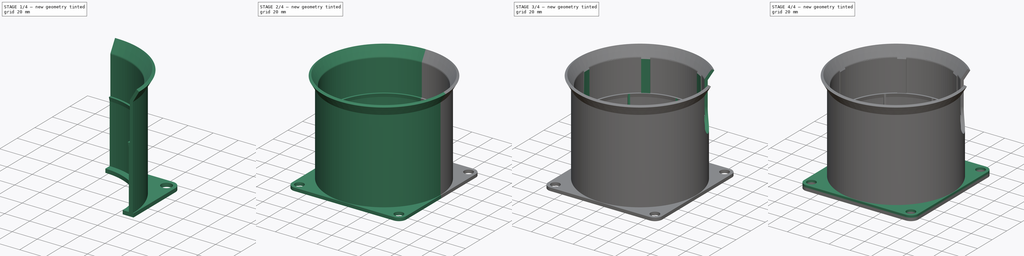
[diagram: build sequence overview — one tinted view per stage of 4, left to right]
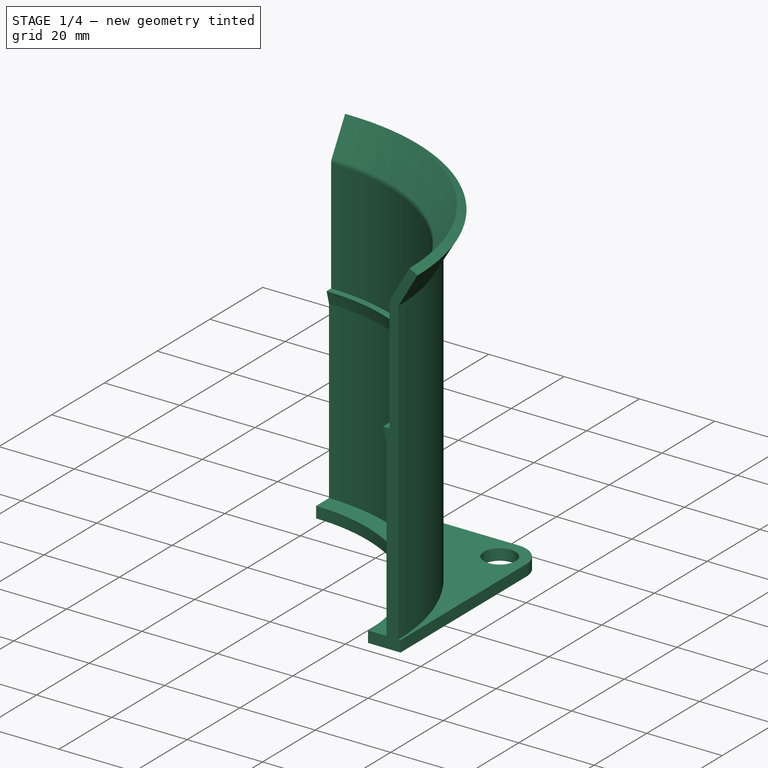
[diagram: stage 1 of 4 — iso view after this stage's code; geometry added in this stage tinted green]
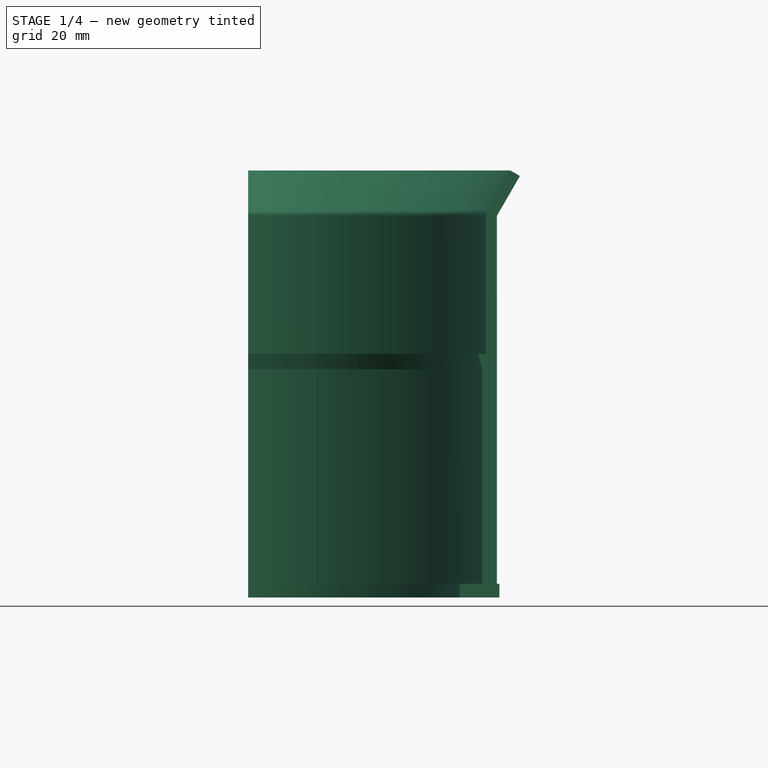
[diagram: stage 1 of 4 — front view after this stage's code; geometry added in this stage tinted green]
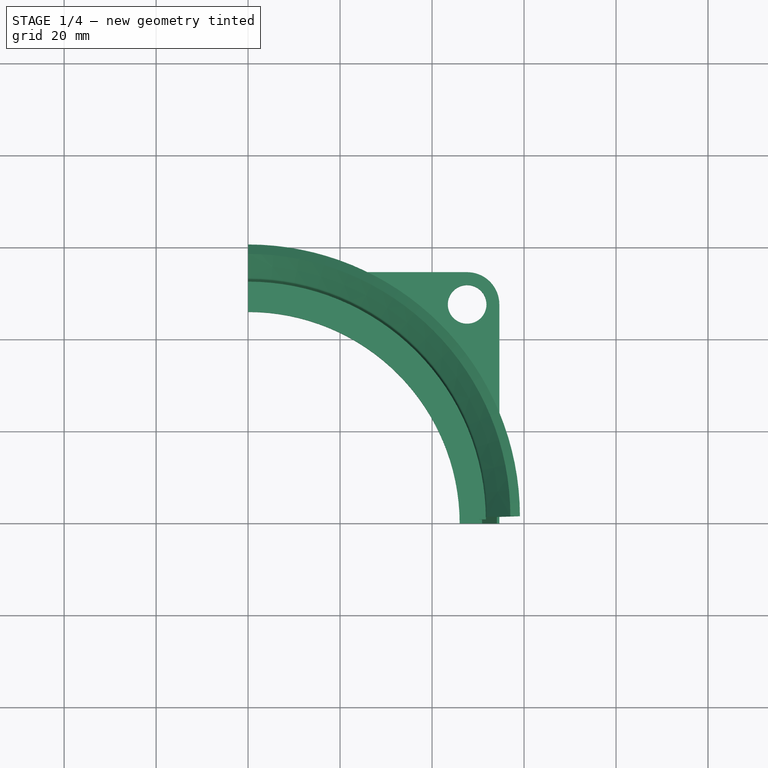
[diagram: stage 1 of 4 — top view after this stage's code; geometry added in this stage tinted green]
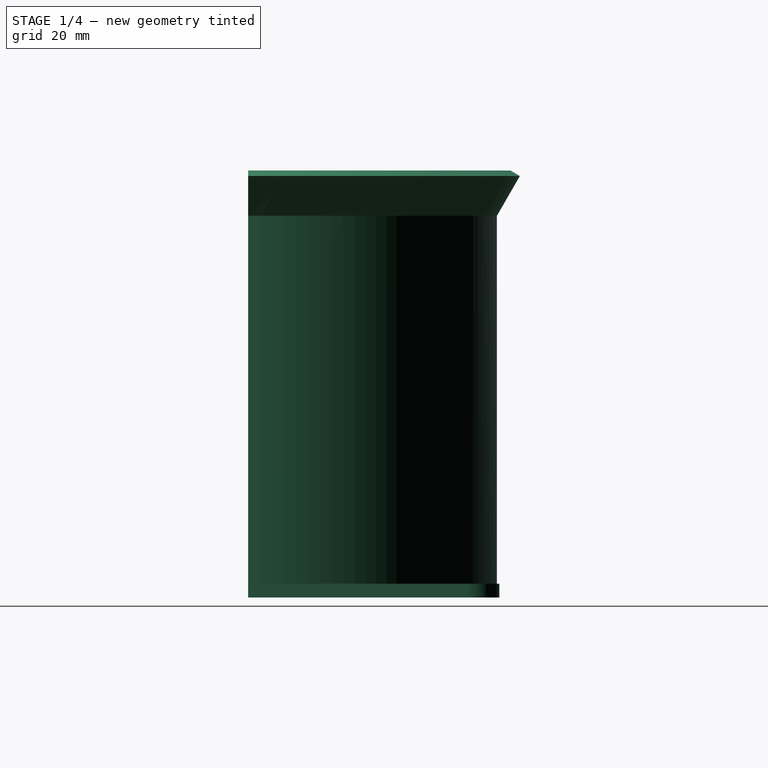
[diagram: stage 1 of 4 — right view after this stage's code; geometry added in this stage tinted green]
FCSTD DOCUMENT  (FreeCAD 0.20R29177 (Git))
Label: Фланец колец 2
License: All rights reserved
LicenseURL: http://en.wikipedia.org/wiki/All_rights_reserved
objects: Sketcher::SketchObject×6, PartDesign::Mirrored×6, PartDesign::MultiTransform×4, PartDesign::Revolution×3, PartDesign::Pad×2, PartDesign::PolarPattern×2, PartDesign::Body×2, Spreadsheet::Sheet×1, PartDesign::Plane×1, PartDesign::Pocket×1
note: 33 computed .brp shape members not serialized (recipe doc carries the construction recipe); baked Part::Feature solids carry a one-line shape summary decoded from their .brp

FEATURE [Sketcher::SketchObject] Sketch
  FullyConstrained = true
  MapMode = 5
  Placement = pos=(0,0,0) rot=(1,0,0;1.5708rad)
  Support = -> [XZ_Plane]
  expr: Constraints[19] = Spreadsheet.wallThickness
  expr: Constraints[24] = Spreadsheet.tube_height
  expr: Constraints[4] = Spreadsheet.final_tubeOutsideD / 2
  expr: Constraints[5] = Spreadsheet.tube_inner_radius / 2
  sketch-geometry (11):
    g0: LineSegment StartX=50 StartY=50 StartZ=0 EndX=51.7 EndY=50 EndZ=0
    g1: LineSegment StartX=50 StartY=50 StartZ=0 EndX=50.9 EndY=46.6412 EndZ=0
    g2: LineSegment StartX=51.7 StartY=50 StartZ=0 EndX=51.7 EndY=80 EndZ=0
    g3: ArcOfCircle CenterX=54.1 CenterY=80 CenterZ=0 NormalX=0 NormalY=0 NormalZ=1 AngleXU=0 Radius=2.4 StartAngle=2.61799 EndAngle=3.14159
    g4: LineSegment StartX=52.0215 StartY=81.2 StartZ=0 EndX=57.0215 EndY=89.8603 EndZ=0
    g5: LineSegment StartX=57.0215 StartY=89.8603 StartZ=0 EndX=59.1 EndY=88.6603 EndZ=0
    g6: LineSegment StartX=59.1 StartY=88.6603 StartZ=0 EndX=54.1 EndY=80 EndZ=0
    g7: LineSegment StartX=54.1 StartY=80 StartZ=0 EndX=54.1 EndY=50 EndZ=0
    g8: LineSegment StartX=50.9 StartY=0 StartZ=0 EndX=54.1 EndY=0 EndZ=0
    g9: LineSegment StartX=54.1 StartY=0 StartZ=0 EndX=54.1 EndY=50 EndZ=0
    g10: LineSegment StartX=50.9 StartY=46.6412 StartZ=0 EndX=50.9 EndY=0 EndZ=0
  constraints (35):
    c: Horizontal(g0)
    c: Coincident(g1,g0)
    c: Coincident(g2,g0)
    c: Vertical(g2)
    c: Distance(g0,g-2) = 51.7
    c: Distance(g0,g-2) = 50
    c: Coincident(g3,g2)
    c: Coincident(g4,g3)
    c: Coincident(g5,g4)
    c: Coincident(g6,g5)
    c: Coincident(g6,g3)
    c: Coincident(g7,g3)
    c: Vertical(g7)
    c: Tangent(g4,g3)
    c: Tangent(g3,g2)
    c: Angle(g7,g6) = 2.61799
    c: Perpendicular(g6,g5)
    c: Parallel(g6,g4)
    c: Distance(g6) = 10
    c: Distance(g5) = 2.4
    c: Angle(g1,g0) = 1.309
    c: Horizontal(g8)
    c: Coincident(g9,g8)
    c: PointOnObject(g8,g-1)
    c: Distance(g7) = 30
    c: Distance(g0,g-1) = 50
    c: Coincident(g9,g7)
    c: Vertical(g9)
    c: Distance(g2) = 30
    c: Distance(g0,g7) = 4.1
    c: Distance(g1,g9) = 3.2
    c: Coincident(g10,g1)
    c: Coincident(g10,g8)
    c: Vertical(g10)
    c: Angle(g1,g0) = 1.309
FEATURE [Spreadsheet::Sheet] Spreadsheet
  cells = A1=Труба; B1(tube_outer_radius)=102; C1(tube_inner_radius)=100; D1(tube_height)=30; B2=Внешний диаметр; C2=Внутренний диаметр; D2=Высота; A3=Выступы; B3(ledge_width)=4; C3(ledge_length)=0.7; B4=Ширина; C4=Длина; B5(final_tubeOutsideD)==tube_outer_radius + ledge_length * 2; A15=Общее; B15(wallThickness)=2.4; B16=Толщина стенки
FEATURE [PartDesign::Revolution] Revolution
  Angle = 90
  Axis = (0,-2e-16,1)
  Base = (0,0,0)
  Placement = pos=(0,0,0) rot=(1,0,0;1.5708rad)
  Profile = -> Sketch
  ReferenceAxis = -> Sketch [V_Axis]
FEATURE [Sketcher::SketchObject] Sketch001
  FullyConstrained = true
  MapMode = 5
  Support = -> [XY_Plane]
  sketch-geometry (14):
    g0: Circle CenterX=47.625 CenterY=47.625 CenterZ=0 NormalX=0 NormalY=0 NormalZ=1 AngleXU=0 Radius=4.2
    g1: ArcOfCircle CenterX=47.625 CenterY=47.625 CenterZ=0 NormalX=0 NormalY=0 NormalZ=1 AngleXU=0 Radius=7 StartAngle=6.28318 EndAngle=7.85398
    g2: LineSegment StartX=54.625 StartY=47.625 StartZ=0 EndX=54.625 EndY=0 EndZ=0
    g3: LineSegment StartX=47.625 StartY=54.625 StartZ=0 EndX=0 EndY=54.625 EndZ=0
    g4: LineSegment StartX=54.625 StartY=0 StartZ=0 EndX=46 EndY=0 EndZ=0
    g5: ArcOfCircle CenterX=0 CenterY=0 CenterZ=0 NormalX=0 NormalY=0 NormalZ=1 AngleXU=0 Radius=46 StartAngle=0 EndAngle=0.399817
    g6: LineSegment StartX=0 StartY=54.625 StartZ=0 EndX=0 EndY=46 EndZ=0
    g7: ArcOfCircle CenterX=0 CenterY=0 CenterZ=0 NormalX=0 NormalY=0 NormalZ=1 AngleXU=0 Radius=44.5 StartAngle=0.399817 EndAngle=0.534751
    g8: LineSegment StartX=38.2876 StartY=22.6784 StartZ=0 EndX=39.5782 EndY=23.4428 EndZ=0
    g9: LineSegment StartX=40.9904 StartY=17.3216 StartZ=0 EndX=42.3721 EndY=17.9055 EndZ=0
    g10: LineSegment StartX=40.9904 StartY=17.3216 StartZ=0 EndX=39.639 EndY=20 EndZ=0
    g11: LineSegment StartX=39.639 StartY=20 StartZ=0 EndX=38.2876 EndY=22.6784 EndZ=0
    g12: ArcOfCircle CenterX=0 CenterY=0 CenterZ=0 NormalX=0 NormalY=0 NormalZ=1 AngleXU=0 Radius=46 StartAngle=0.534751 EndAngle=1.5708
    g13: ArcOfCircle CenterX=0 CenterY=0 CenterZ=0 NormalX=0 NormalY=0 NormalZ=1 AngleXU=0 Radius=46 StartAngle=0.399817 EndAngle=0.534751
  constraints (40):
    c: DistanceX(g0) = 47.625
    c: DistanceY(g0) = 47.625
    c: Diameter(g0) = 8.4
    c: Coincident(g1,g0)
    c: Diameter(g1) = 14
    c: Coincident(g2,g1)
    c: PointOnObject(g2,g-1)
    c: Vertical(g2)
    c: Coincident(g3,g1)
    c: PointOnObject(g3,g-2)
    c: Horizontal(g3)
    c: Tangent(g1,g3)
    c: Tangent(g1,g2)
    c: Coincident(g4,g2)
    c: PointOnObject(g4,g-1)
    c: Coincident(g5,g-1)
    c: Coincident(g5,g4)
    c: PointOnObject(g12,g-2)
    c: Diameter(g5) = 92
    c: Coincident(g6,g3)
    c: Coincident(g6,g12)
    c: Coincident(g8,g7)
    c: Coincident(g9,g7)
    c: Perpendicular(g7,g9)
    c: Perpendicular(g7,g8)
    c: Coincident(g10,g7)
    c: Coincident(g11,g10)
    c: Coincident(g11,g7)
    c: Parallel(g10,g11)
    c: Equal(g10,g11)
    c: Distance(g10,g-1) = 20
    c: Distance(g7,g7) = 6
    c: Distance(g9) = 1.5
    c: Coincident(g7,g5)
    c: Coincident(g5,g9)
    c: Coincident(g12,g8)
    c: Coincident(g5,g12)
    c: Coincident(g13,g5)
    c: Coincident(g13,g5)
    c: Coincident(g13,g12)
FEATURE [PartDesign::Pad] Pad
  BaseFeature = -> Revolution
  Direction = (1,1,1)
  Length = 3
  Length2 = 100
  Placement = pos=(0,0,0) rot=(1,0,0;1.5708rad)
  Profile = -> Sketch001
  Reversed = true
  Type = 0
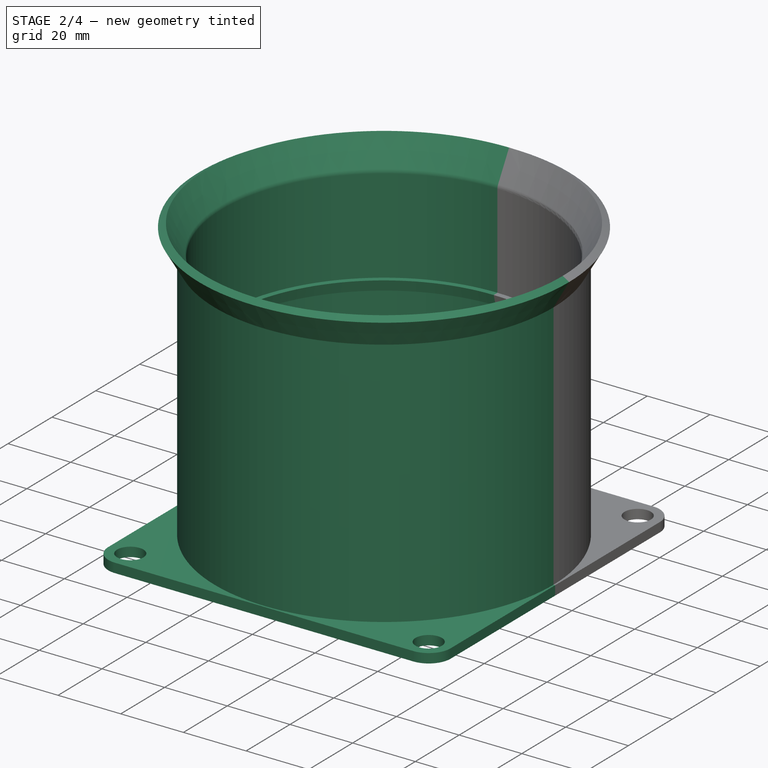
[diagram: stage 2 of 4 — iso view after this stage's code; geometry added in this stage tinted green]
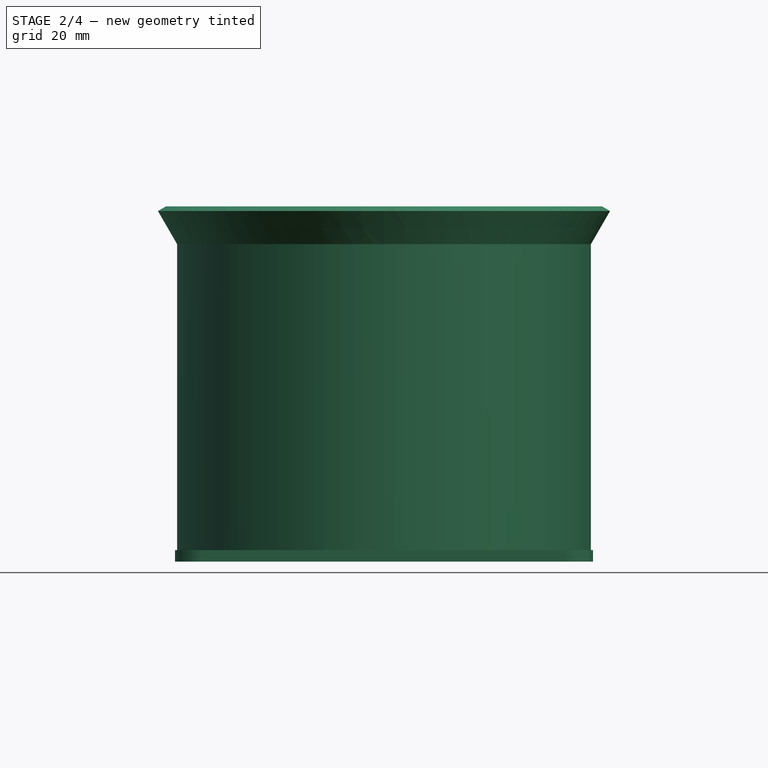
[diagram: stage 2 of 4 — front view after this stage's code; geometry added in this stage tinted green]
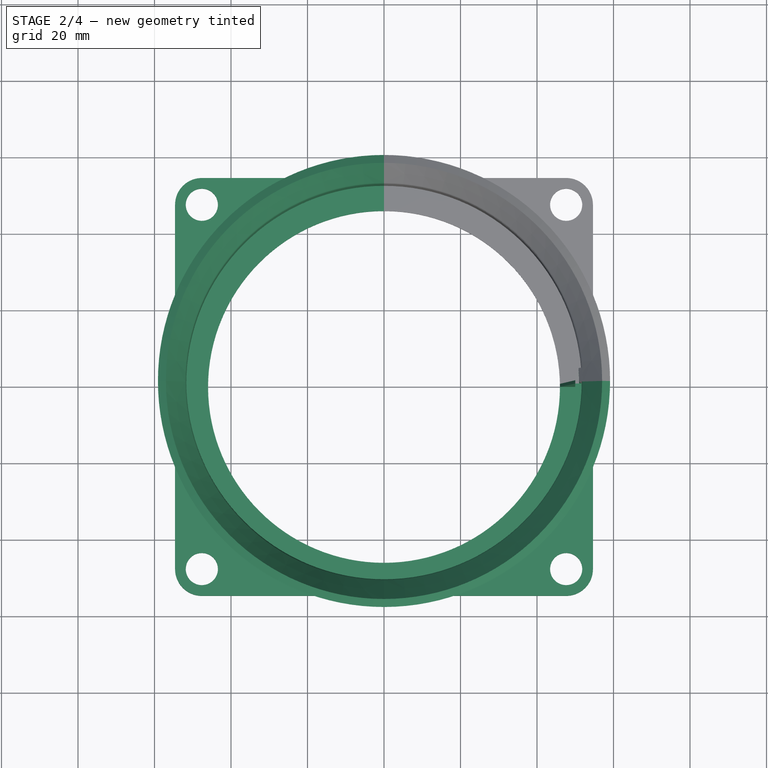
[diagram: stage 2 of 4 — top view after this stage's code; geometry added in this stage tinted green]
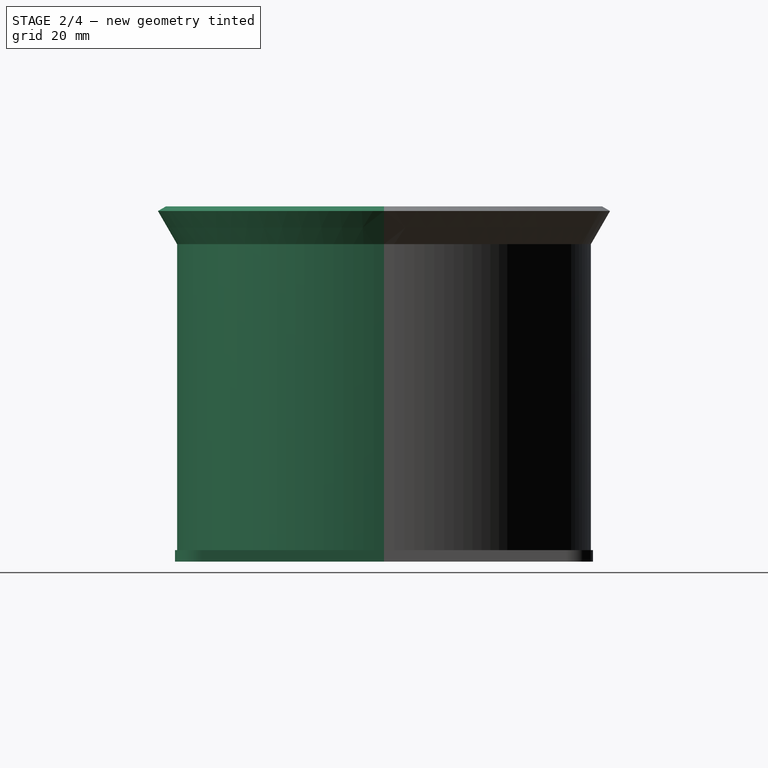
[diagram: stage 2 of 4 — right view after this stage's code; geometry added in this stage tinted green]
FEATURE [Sketcher::SketchObject] Sketch002
  FullyConstrained = true
  MapMode = 5
  Placement = pos=(0,0,0) rot=(1,0,0;1.5708rad)
  Support = -> [XZ_Plane]
  sketch-geometry (5):
    g0: LineSegment StartX=51 StartY=50 StartZ=0 EndX=51.7 EndY=50 EndZ=0
    g1: LineSegment StartX=51.7 StartY=50 StartZ=0 EndX=51.7 EndY=80 EndZ=0
    g2: LineSegment StartX=51 StartY=79.43 StartZ=0 EndX=51 EndY=50 EndZ=0
    g3: LineSegment StartX=51 StartY=79.43 StartZ=0 EndX=52.02 EndY=81.1967 EndZ=0
    g4: LineSegment StartX=51.7 StartY=80 StartZ=0 EndX=52.02 EndY=81.1967 EndZ=0
  constraints (15):
    c: Coincident(g0,g1)
    c: Coincident(g2,g0)
    c: Horizontal(g0)
    c: Vertical(g1)
    c: Vertical(g2)
    c: Coincident(g3,g2)
    c: Coincident(g4,g1)
    c: Coincident(g4,g3)
    c: Distance(g0,g-1) = 50
    c: Distance(g0) = 0.7
    c: Angle(g2,g3) = 2.61799
    c: Distance(g2) = 29.43
    c: Distance(g1) = 30
    c: Distance(g0,g-2) = 51.7
    c: Distance(g3) = 2.04
FEATURE [PartDesign::Revolution] Revolution001
  Angle = 4
  Axis = (0,-2e-16,1)
  Base = (0,0,0)
  BaseFeature = -> Pad
  Placement = pos=(0,0,0) rot=(1,0,0;1.5708rad)
  Profile = -> Sketch002
  ReferenceAxis = -> Sketch002 [V_Axis]
FEATURE [Sketcher::SketchObject] Sketch004
  FullyConstrained = false
  MapMode = 5
  Placement = pos=(0,0,0) rot=(1,0,0;1.5708rad)
  Support = -> [XZ_Plane]
  sketch-geometry (4):
    g0: LineSegment StartX=46 StartY=0 StartZ=0 EndX=50 EndY=50 EndZ=0
    g1: LineSegment StartX=50 StartY=50 StartZ=0 EndX=51 EndY=46.7994 EndZ=0
    g2: LineSegment StartX=51 StartY=46.7994 StartZ=0 EndX=51 EndY=0 EndZ=0
    g3: LineSegment StartX=51 StartY=0 StartZ=0 EndX=46 EndY=0 EndZ=0
  constraints (11):
    c: PointOnObject(g3,g-1)
    c: Coincident(g1,g0)
    c: Coincident(g2,g1)
    c: PointOnObject(g2,g-1)
    c: Vertical(g2)
    c: Coincident(g3,g2)
    c: DistanceX(g-1,g3) = 46
    c: Distance(g2,g-1) = 51
    c: DistanceX(g0) = 50
    c: DistanceY(g0) = 50
    c: Coincident(g0,g3)
FEATURE [PartDesign::Revolution] Revolution002
  Angle = 0.996448
  Axis = (-3e-16,3e-16,1)
  Base = (0,0,0)
  BaseFeature = -> Revolution001
  Placement = pos=(0,0,0) rot=(1,0,0;1.5708rad)
  Profile = -> Sketch004
  ReferenceAxis = -> Z_Axis
  expr: Angle = 1.6 / (pi * 92 / 360) / 2
FEATURE [PartDesign::Mirrored] Mirrored
  MirrorPlane = -> Sketch [V_Axis]
  Placement = pos=(0,0,0) rot=(1,0,0;1.5708rad)
FEATURE [PartDesign::Mirrored] Mirrored001
  MirrorPlane = -> XZ_Plane
  Placement = pos=(0,0,0) rot=(1,0,0;1.5708rad)
FEATURE [PartDesign::MultiTransform] MultiTransform
  BaseFeature = -> Revolution002
  Originals = -> [Revolution,Pad]
  Placement = pos=(0,0,0) rot=(1,0,0;1.5708rad)
  Transformations = -> [Mirrored,Mirrored001]
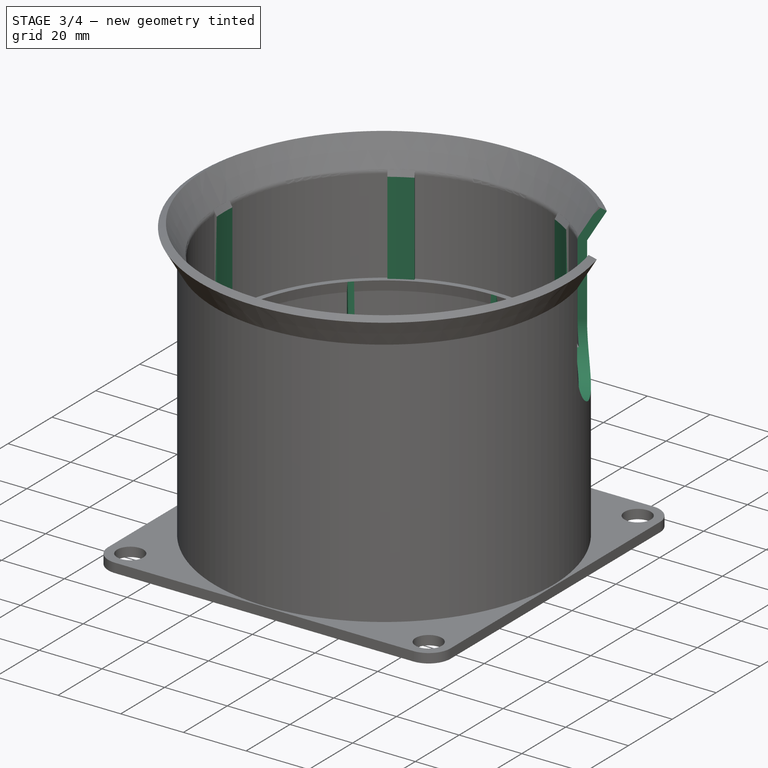
[diagram: stage 3 of 4 — iso view after this stage's code; geometry added in this stage tinted green]
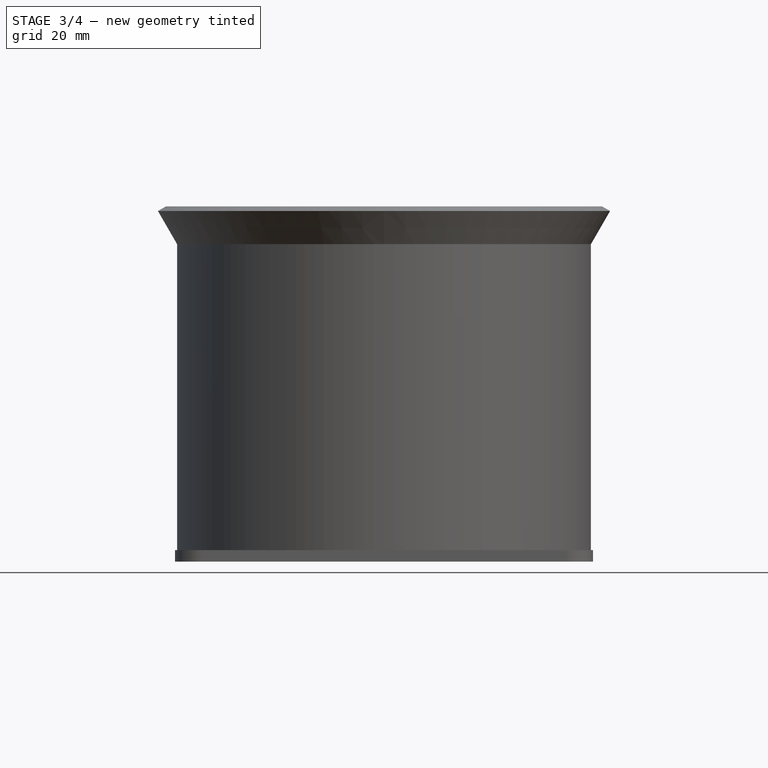
[diagram: stage 3 of 4 — front view after this stage's code; geometry added in this stage tinted green]
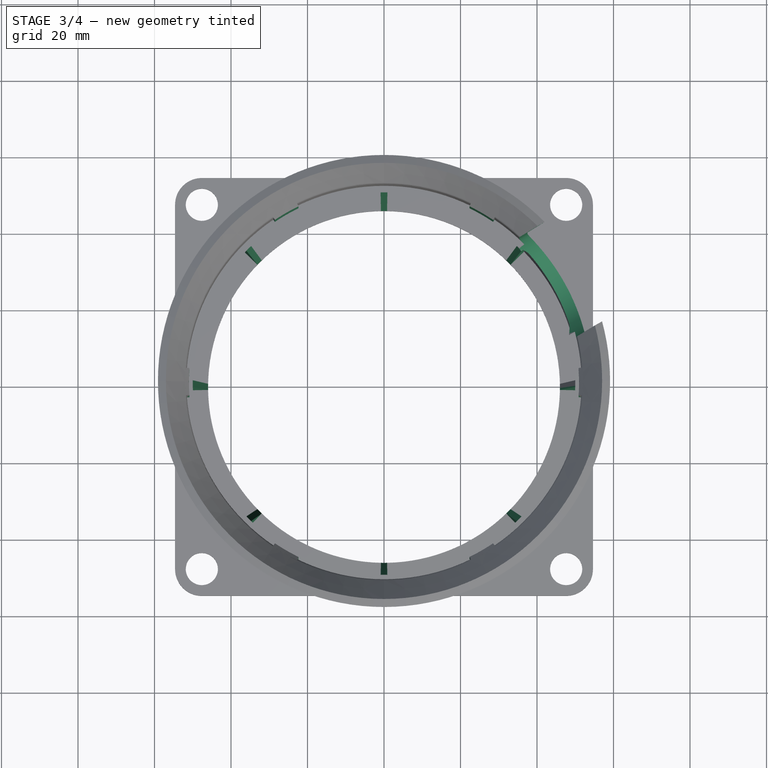
[diagram: stage 3 of 4 — top view after this stage's code; geometry added in this stage tinted green]
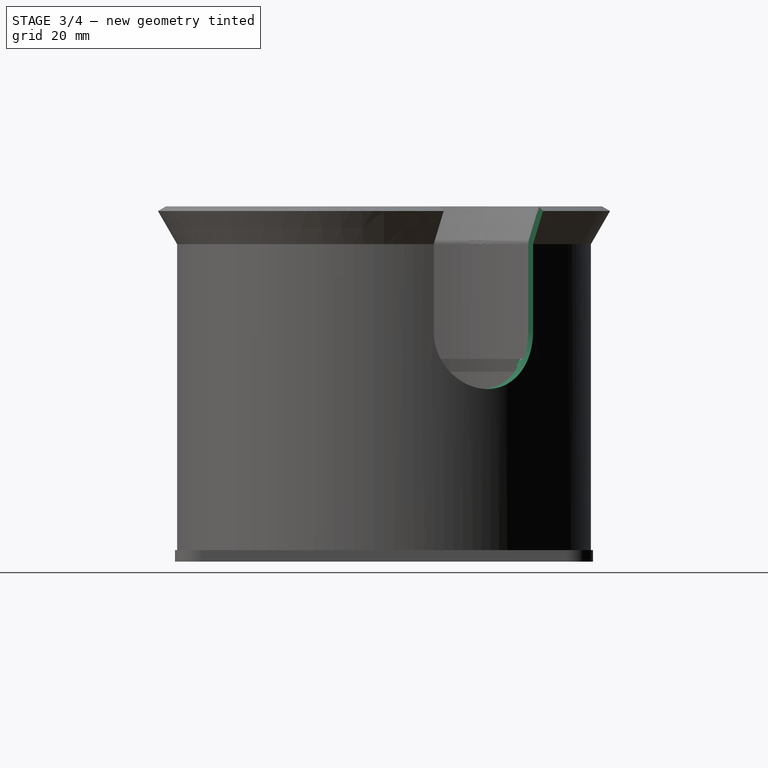
[diagram: stage 3 of 4 — right view after this stage's code; geometry added in this stage tinted green]
FEATURE [PartDesign::Mirrored] Mirrored002
  MirrorPlane = -> XZ_Plane
  Placement = pos=(0,0,0) rot=(1,0,0;1.5708rad)
FEATURE [PartDesign::PolarPattern] PolarPattern
  Angle = 360
  Axis = -> Sketch002 [V_Axis]
  Occurrences = 6
  Placement = pos=(0,0,0) rot=(1,0,0;1.5708rad)
FEATURE [PartDesign::MultiTransform] MultiTransform001
  BaseFeature = -> MultiTransform
  Originals = -> [Revolution001]
  Placement = pos=(0,0,0) rot=(1,0,0;1.5708rad)
  Transformations = -> [Mirrored002,PolarPattern]
FEATURE [PartDesign::Mirrored] Mirrored003
  MirrorPlane = -> XZ_Plane
  Placement = pos=(0,0,0) rot=(1,0,0;1.5708rad)
FEATURE [PartDesign::PolarPattern] PolarPattern001
  Angle = 360
  Axis = -> Sketch004 [V_Axis]
  Occurrences = 8
  Placement = pos=(0,0,0) rot=(1,0,0;1.5708rad)
FEATURE [PartDesign::MultiTransform] MultiTransform002
  BaseFeature = -> MultiTransform001
  Originals = -> [Revolution002]
  Placement = pos=(0,0,0) rot=(1,0,0;1.5708rad)
  Transformations = -> [Mirrored003,PolarPattern001]
FEATURE [PartDesign::Body] Body001
  Group = -> [Sketch006,Pad001,MultiTransform003,Mirrored004,Mirrored005]
  Origin = -> Origin001
  Tip = -> MultiTransform003
FEATURE [PartDesign::Pocket] Pocket
  BaseFeature = -> MultiTransform002
  Direction = (1,1,1)
  Length = 5
  Length2 = 100
  Placement = pos=(0,0,0) rot=(1,0,0;1.5708rad)
  Profile = -> Sketch005
  Type = 1
FEATURE [PartDesign::Body] Body
  Group = -> [Sketch,Revolution,Sketch001,Pad,Sketch002,Revolution001,Sketch004,Revolution002,MultiTransform,Mirrored,Mirrored001,MultiTransform001,Mirrored002,PolarPattern,MultiTransform002,Mirrored003,PolarPattern001,DatumPlane002,Sketch005,Pocket]
  Origin = -> Origin
  Tip = -> Pocket
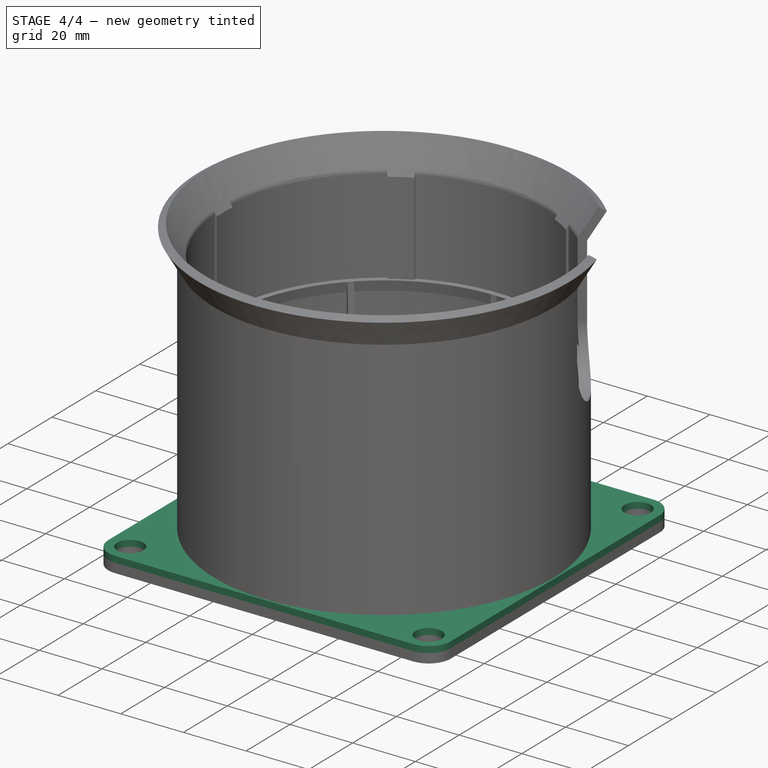
[diagram: stage 4 of 4 — iso view after this stage's code; geometry added in this stage tinted green]
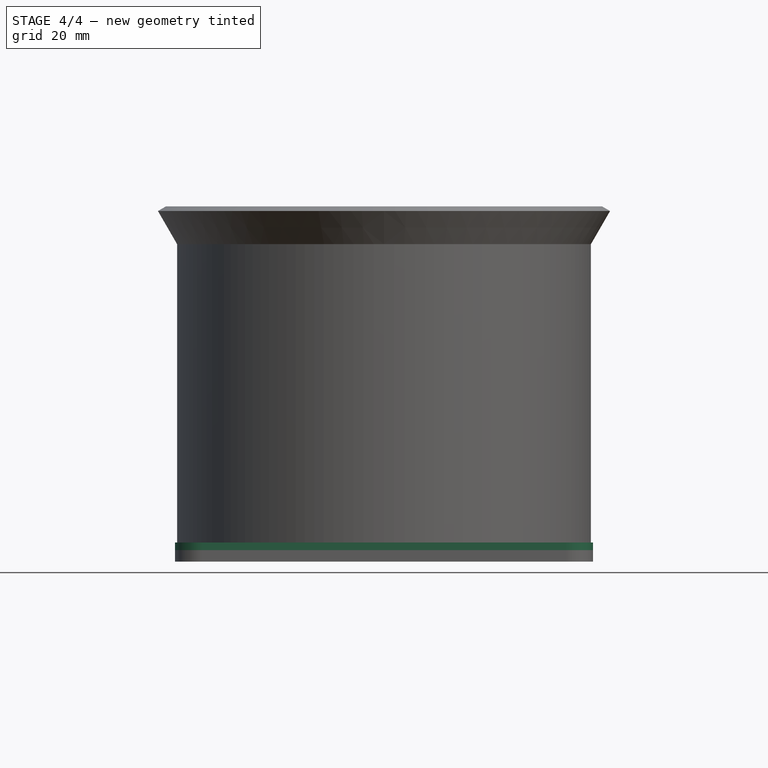
[diagram: stage 4 of 4 — front view after this stage's code; geometry added in this stage tinted green]
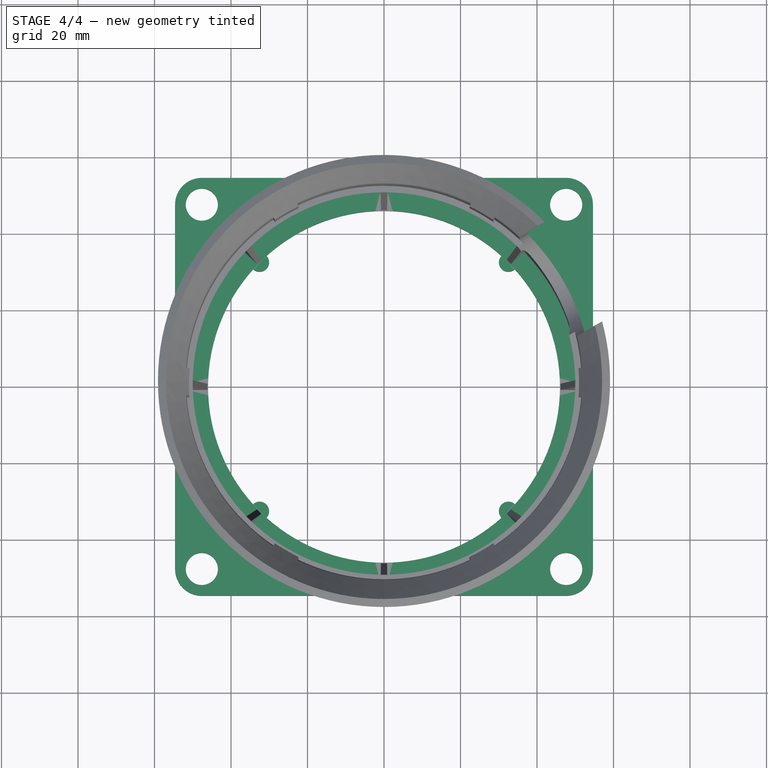
[diagram: stage 4 of 4 — top view after this stage's code; geometry added in this stage tinted green]
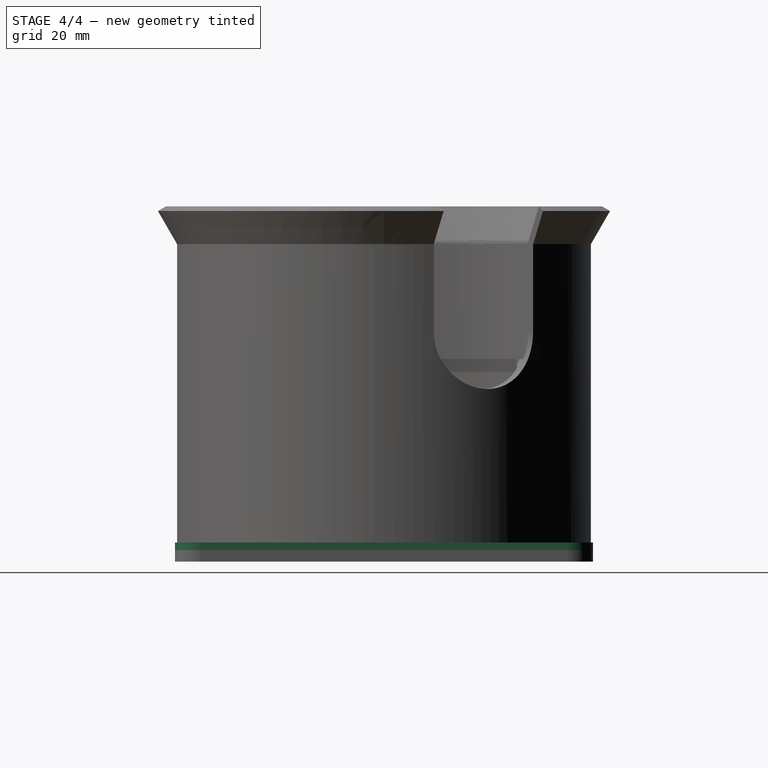
[diagram: stage 4 of 4 — right view after this stage's code; geometry added in this stage tinted green]
FEATURE [PartDesign::Plane] DatumPlane002
  Length = 188.701
  MapMode = 13
  Placement = pos=(-43.4235,-16.4654,69.62) rot=(0.774597,-0.447214,-0.447214;1.82348rad)
  ResizeMode = 0
  Support = -> [MultiTransform002]
  Width = 142.097
FEATURE [Sketcher::SketchObject] Sketch005
  FullyConstrained = false
  MapMode = 5
  Placement = pos=(-43.4235,-16.4654,69.62) rot=(0.774597,-0.447214,-0.447214;1.82348rad)
  Support = -> [DatumPlane002]
  sketch-geometry (6):
    g0: ArcOfCircle CenterX=7.45231 CenterY=-12.496 CenterZ=0 NormalX=0 NormalY=0 NormalZ=1 AngleXU=0 Radius=15 StartAngle=3.14159 EndAngle=6.28319
    g1: LineSegment StartX=-7.54769 StartY=-12.496 StartZ=0 EndX=-7.54769 EndY=36.9769 EndZ=0
    g2: LineSegment StartX=-7.54769 StartY=36.9769 StartZ=0 EndX=22.4523 EndY=36.9769 EndZ=0
    g3: LineSegment StartX=22.4523 StartY=36.9769 StartZ=0 EndX=22.4523 EndY=-12.496 EndZ=0
    g4: LineSegment StartX=-7.54769 StartY=-12.496 StartZ=0 EndX=-14.9046 EndY=-12.496 EndZ=0
    g5: LineSegment StartX=22.4523 StartY=-12.496 StartZ=0 EndX=29.8092 EndY=-12.496 EndZ=0
  constraints (15):
    c: Coincident(g1,g2)
    c: Coincident(g2,g3)
    c: Horizontal(g2)
    c: Vertical(g1)
    c: Vertical(g3)
    c: Coincident(g0,g1)
    c: Coincident(g4,g0)
    c: Horizontal(g4)
    c: Coincident(g5,g0)
    c: Horizontal(g5)
    c: Equal(g5,g4)
    c: Coincident(g3,g0)
    c: Diameter(g0) = 30
    c: Tangent(g3,g0)
    c: Tangent(g1,g0)
FEATURE [Sketcher::SketchObject] Sketch006
  FullyConstrained = true
  MapMode = 5
  Support = -> [XY_Plane001]
  sketch-geometry (11):
    g0: Circle CenterX=47.625 CenterY=47.625 CenterZ=0 NormalX=0 NormalY=0 NormalZ=1 AngleXU=0 Radius=4.2
    g1: ArcOfCircle CenterX=47.625 CenterY=47.625 CenterZ=0 NormalX=0 NormalY=0 NormalZ=1 AngleXU=0 Radius=7 StartAngle=6.28319 EndAngle=7.85398
    g2: LineSegment StartX=47.625 StartY=54.625 StartZ=0 EndX=0 EndY=54.625 EndZ=0
    g3: LineSegment StartX=54.625 StartY=47.625 StartZ=0 EndX=54.625 EndY=0 EndZ=0
    g4: ArcOfCircle CenterX=0 CenterY=0 CenterZ=0 NormalX=0 NormalY=0 NormalZ=1 AngleXU=0 Radius=46 StartAngle=0 EndAngle=0.731044
    g5: LineSegment StartX=32.5269 StartY=32.5269 StartZ=0 EndX=0 EndY=32.5269 EndZ=0
    g6: LineSegment StartX=32.5269 StartY=32.5269 StartZ=0 EndX=32.5269 EndY=0 EndZ=0
    g7: ArcOfCircle CenterX=0 CenterY=0 CenterZ=0 NormalX=0 NormalY=0 NormalZ=1 AngleXU=0 Radius=46 StartAngle=0.839753 EndAngle=1.5708
    g8: LineSegment StartX=46 StartY=0 StartZ=0 EndX=54.625 EndY=0 EndZ=0
    g9: LineSegment StartX=2.8e-15 StartY=46 StartZ=0 EndX=0 EndY=54.625 EndZ=0
    g10: ArcOfCircle CenterX=32.5269 CenterY=32.5269 CenterZ=0 NormalX=0 NormalY=0 NormalZ=1 AngleXU=0 Radius=2.5 StartAngle=2.38337 EndAngle=5.47061
  constraints (34):
    c: DistanceX(g0) = 47.625
    c: DistanceY(g0) = 47.625
    c: Diameter(g0) = 8.4
    c: Coincident(g1,g0)
    c: Diameter(g1) = 14
    c: Coincident(g2,g1)
    c: PointOnObject(g2,g-2)
    c: Horizontal(g2)
    c: Coincident(g3,g1)
    c: PointOnObject(g3,g-1)
    c: Vertical(g3)
    c: Tangent(g3,g1)
    c: Tangent(g2,g1)
    c: Coincident(g4,g-1)
    c: PointOnObject(g4,g-1)
    c: PointOnObject(g7,g-2)
    c: Diameter(g4) = 92
    c: PointOnObject(g5,g-2)
    c: Horizontal(g5)
    c: PointOnObject(g6,g-1)
    c: Vertical(g6)
    c: Equal(g6,g5)
    c: Equal(g4,g7)
    c: Coincident(g4,g7)
    c: Coincident(g8,g4)
    c: Coincident(g8,g3)
    c: Coincident(g9,g7)
    c: Coincident(g9,g2)
    c: Coincident(g10,g7)
    c: Coincident(g10,g4)
    c: Coincident(g10,g5)
    c: Coincident(g10,g6)
    c: PointOnObject(g10,g4)
    c: Diameter(g10) = 5
FEATURE [PartDesign::Pad] Pad001
  Direction = (0,0,1)
  Length = 2
  Length2 = 100
  Profile = -> Sketch006
  Type = 0
FEATURE [PartDesign::Mirrored] Mirrored004
  MirrorPlane = -> Sketch006 [V_Axis]
FEATURE [PartDesign::Mirrored] Mirrored005
  MirrorPlane = -> Sketch006 [H_Axis]
FEATURE [PartDesign::MultiTransform] MultiTransform003
  BaseFeature = -> Pad001
  Originals = -> [Pad001]
  Transformations = -> [Mirrored004,Mirrored005]
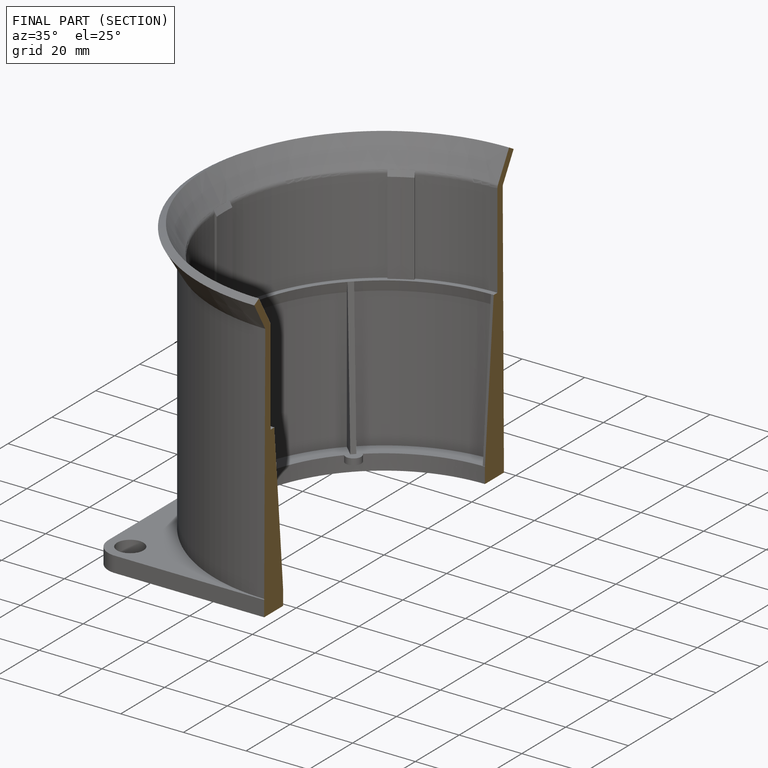
[diagram: finished part — half-section view (interior)]
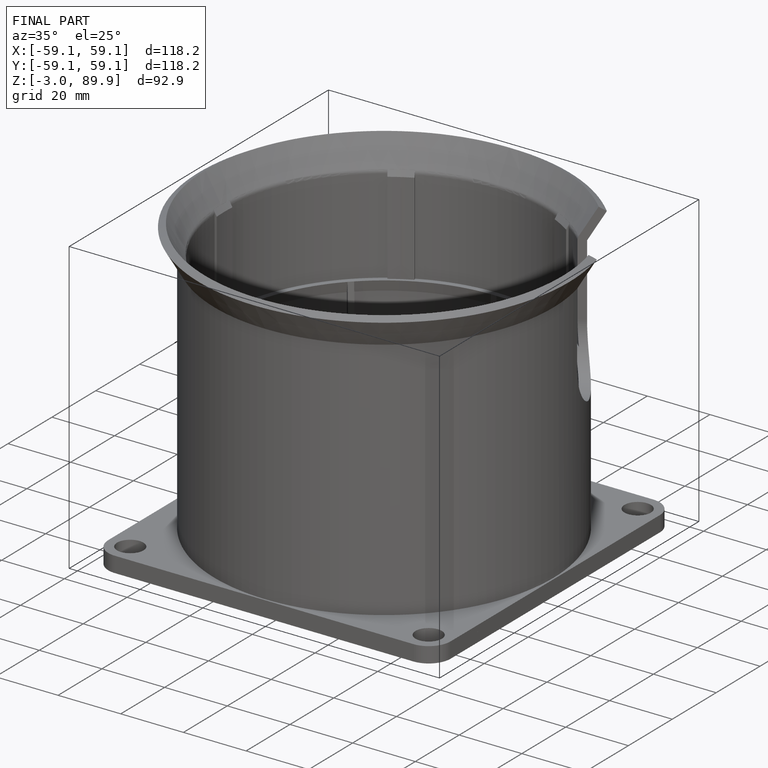
[diagram: finished part — iso view with bounding-box wireframe]
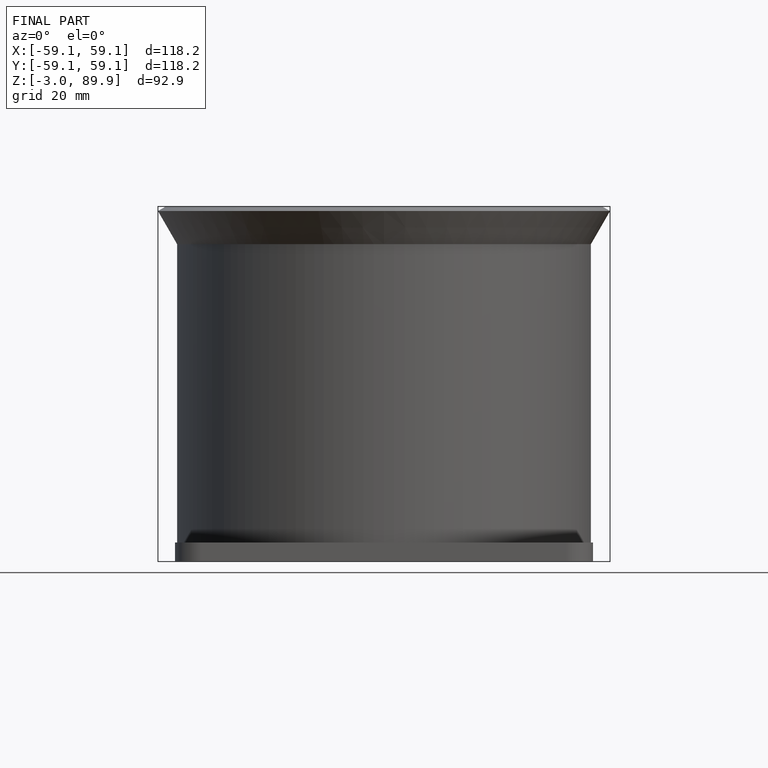
[diagram: finished part — front view with bounding-box wireframe]
